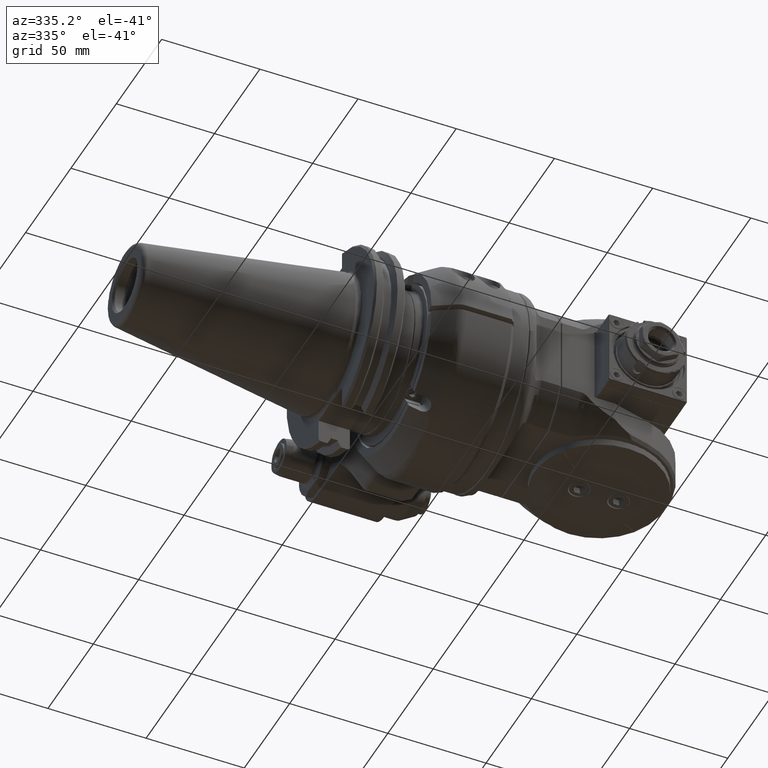
[diagram: clean part render]
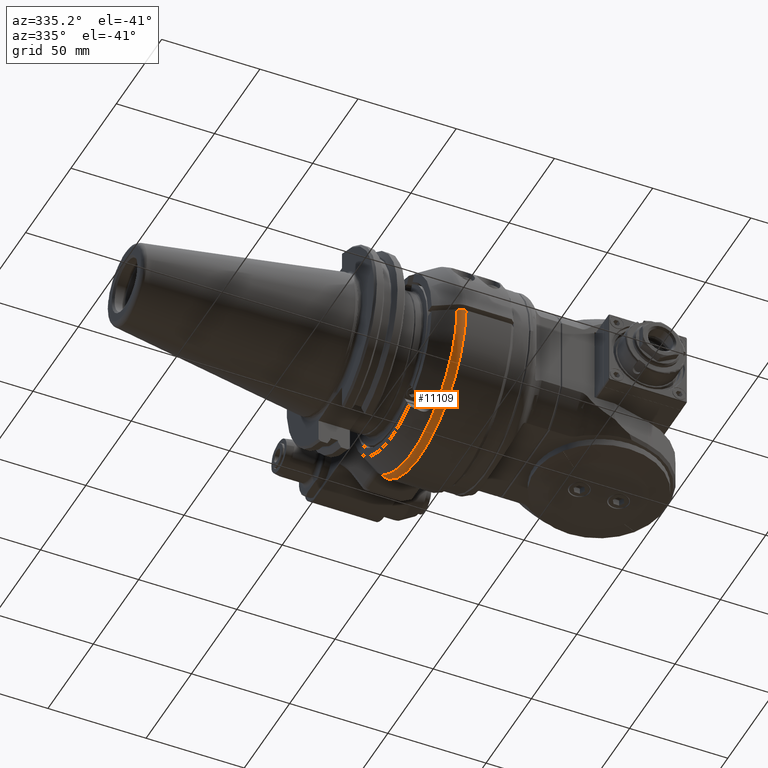
[diagram: same view with one face highlighted and labeled with its STEP entity id]
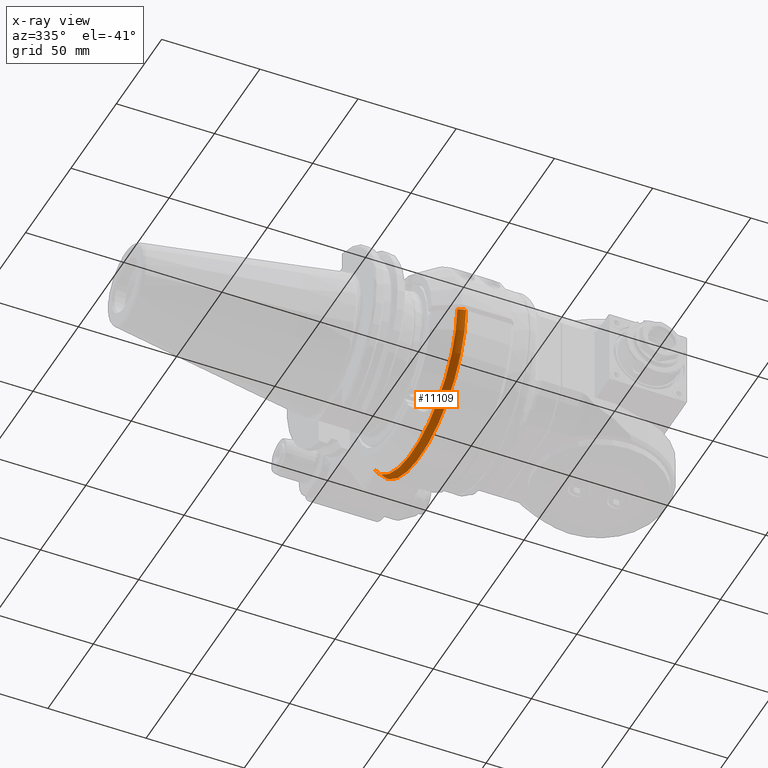
[diagram: x-ray of the same camera — body ghosted, the highlighted face saturated]
A machine part, auxiliary view. The second image highlights one B-rep face of the part: STEP entity #11109.
The next image is the same camera in x-ray: the body ghosted, the highlighted face saturated — about 0% of this face is hidden behind the body in this view.
In plain terms, the highlighted toroidal blend (fillet) surface has major radius 43 mm and minor (blend) radius 8 mm.
Its self-contained STEP definition (entity closure, byte-faithful):
#244=TOROIDAL_SURFACE('',#12138,43.,8.);
#756=CIRCLE('',#12110,51.);
#771=CIRCLE('',#12135,49.92820323028);
#1355=FACE_OUTER_BOUND('',#2083,.T.);
#2083=EDGE_LOOP('',(#8953,#8954,#8955,#8956));
#4068=B_SPLINE_CURVE_WITH_KNOTS('',3,(#18413,#18414,#18415,#18416,#18417,
#18418,#18419,#18420,#18421,#18422),.UNSPECIFIED.,.F.,.F.,(4,2,2,2,4),(2.65541910444733,
2.70524080459426,2.85666458403861,2.97095943510165,3.0852542861647),
 .UNSPECIFIED.);
#4074=B_SPLINE_CURVE_WITH_KNOTS('',3,(#18555,#18556,#18557,#18558,#18559,
#18560,#18561,#18562),.UNSPECIFIED.,.F.,.F.,(4,2,2,4),(7.5173992896467E-10,
0.148073437647891,0.296146874544042,0.396151965412959),.UNSPECIFIED.);
#4946=VERTEX_POINT('',#18410);
#4947=VERTEX_POINT('',#18412);
#4958=VERTEX_POINT('',#18457);
#4970=VERTEX_POINT('',#18544);
#6335=EDGE_CURVE('',#4947,#4946,#4068,.T.);
#6347=EDGE_CURVE('',#4946,#4958,#756,.T.);
#6364=EDGE_CURVE('',#4958,#4970,#4074,.T.);
#6390=EDGE_CURVE('',#4970,#4947,#771,.T.);
#8953=ORIENTED_EDGE('',*,*,#6390,.T.);
#8954=ORIENTED_EDGE('',*,*,#6335,.T.);
#8955=ORIENTED_EDGE('',*,*,#6347,.T.);
#8956=ORIENTED_EDGE('',*,*,#6364,.T.);
#11109=ADVANCED_FACE('',(#1355),#244,.T.);
#12110=AXIS2_PLACEMENT_3D('',#18459,#14374,#14375);
#12135=AXIS2_PLACEMENT_3D('',#18658,#14441,#14442);
#12138=AXIS2_PLACEMENT_3D('',#18672,#14447,#14448);
#14374=DIRECTION('center_axis',(-1.,0.,0.));
#14375=DIRECTION('ref_axis',(0.,0.818627450980411,-0.574324904998308));
#14441=DIRECTION('center_axis',(1.,0.,0.));
#14442=DIRECTION('ref_axis',(0.,-0.999548602989596,-0.0300431400080999));
#14447=DIRECTION('center_axis',(1.,0.,0.));
#14448=DIRECTION('ref_axis',(0.,-1.,0.));
#18410=CARTESIAN_POINT('',(-37.23205080757,41.75,-29.29057015492));
#18412=CARTESIAN_POINT('',(-41.23205080757,41.75,-27.38180011986));
#18413=CARTESIAN_POINT('Ctrl Pts',(-41.2320508075675,41.75,-27.3818001198577));
#18414=CARTESIAN_POINT('Ctrl Pts',(-41.1084978721799,41.75,-27.5118698927609));
#18415=CARTESIAN_POINT('Ctrl Pts',(-40.9796012581369,41.75,-27.63883358715));
#18416=CARTESIAN_POINT('Ctrl Pts',(-40.4412749376929,41.75,-28.1311886381695));
#18417=CARTESIAN_POINT('Ctrl Pts',(-39.9932266664163,41.75,-28.4521983127449));
#18418=CARTESIAN_POINT('Ctrl Pts',(-39.2119237728328,41.75,-28.8694287521605));
#18419=CARTESIAN_POINT('Ctrl Pts',(-38.8258618631201,41.75,-29.0288082766981));
#18420=CARTESIAN_POINT('Ctrl Pts',(-38.0264941442551,41.75,-29.2396724058848));
#18421=CARTESIAN_POINT('Ctrl Pts',(-37.6130336444468,41.75,-29.290570154915));
#18422=CARTESIAN_POINT('Ctrl Pts',(-37.23205080757,41.75,-29.290570154915));
#18457=CARTESIAN_POINT('',(-37.2320508150874,-50.9779364043201,-1.49999998570621));
#18459=CARTESIAN_POINT('Origin',(-37.23205080757,0.,0.));
#18544=CARTESIAN_POINT('',(-41.2320595617708,-49.9056607292726,-1.50000007595379));
#18555=CARTESIAN_POINT('Ctrl Pts',(-37.2320508150874,-50.9779364038993,
-1.5));
#18556=CARTESIAN_POINT('Ctrl Pts',(-37.7256289390112,-50.9779364034353,
-1.5));
#18557=CARTESIAN_POINT('Ctrl Pts',(-38.2646778846743,-50.9292248693062,
-1.5));
#18558=CARTESIAN_POINT('Ctrl Pts',(-39.3203684112507,-50.7191785472564,
-1.5));
#18559=CARTESIAN_POINT('Ctrl Pts',(-39.8370100654999,-50.5578441661684,
-1.5));
#18560=CARTESIAN_POINT('Ctrl Pts',(-40.6009648918524,-50.2413261612742,
-1.5));
#18561=CARTESIAN_POINT('Ctrl Pts',(-40.9199634449429,-50.0859314086734,
-1.5));
#18562=CARTESIAN_POINT('Ctrl Pts',(-41.2320595629834,-49.905660731372,-1.5));
#18658=CARTESIAN_POINT('Origin',(-41.23205080757,0.,0.));
#18672=CARTESIAN_POINT('Origin',(-37.23205080757,0.,0.));